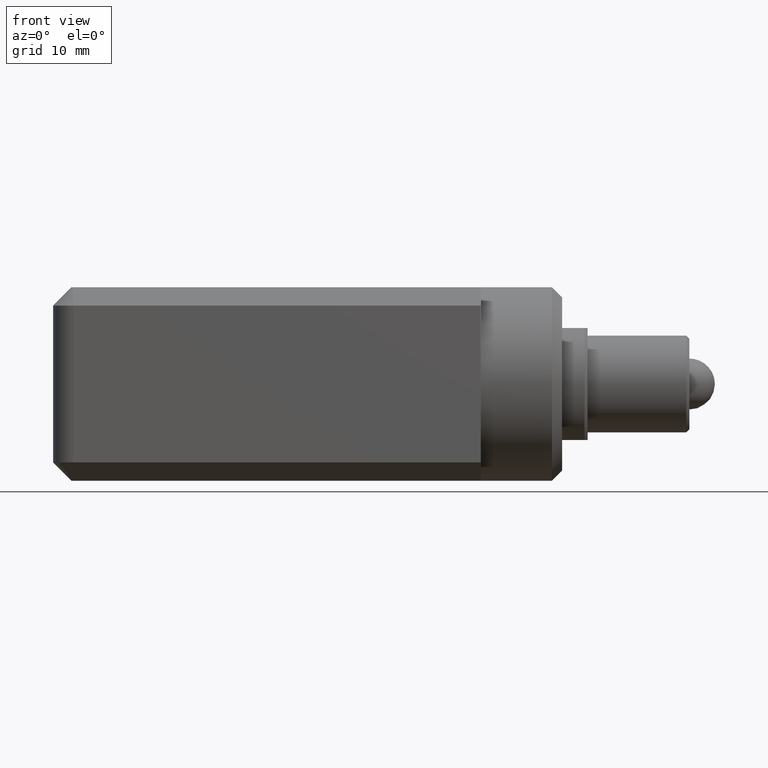
[diagram: clean part render]
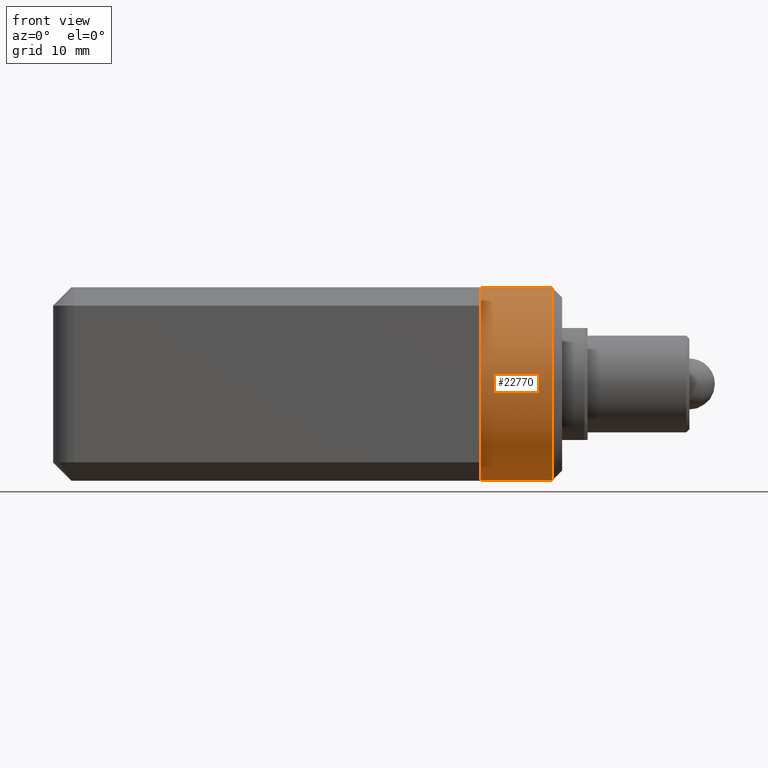
[diagram: same view with one face highlighted and labeled with its STEP entity id]
A machine part, front view. The second image highlights one B-rep face of the part: STEP entity #22770.
In plain terms, the highlighted cylindrical surface (partial cylindrical patch) has radius 9.5 mm, axis along (-1, 0, 0).
Its self-contained STEP definition (entity closure, byte-faithful):
#691 = FACE_OUTER_BOUND ( 'NONE', #18837, .T. ) ;
#824 = DIRECTION ( 'NONE',  ( 0.000000000000000000, 0.000000000000000000, 1.000000000000000000 ) ) ;
#934 = CARTESIAN_POINT ( 'NONE',  ( 6.999999999999999112, 0.000000000000000000, 9.499999999999852562 ) ) ;
#2366 = DIRECTION ( 'NONE',  ( 0.000000000000000000, 0.000000000000000000, 1.000000000000000000 ) ) ;
#2377 = CARTESIAN_POINT ( 'NONE',  ( 0.000000000000000000, 0.000000000000000000, -9.500000000000000000 ) ) ;
#2564 = CARTESIAN_POINT ( 'NONE',  ( 0.000000000000000000, 0.000000000000000000, 9.500000000000000000 ) ) ;
#2707 = AXIS2_PLACEMENT_3D ( 'NONE', #13833, #7787, #9946 ) ;
#2758 = DIRECTION ( 'NONE',  ( -1.000000000000000000, 0.000000000000000000, 0.000000000000000000 ) ) ;
#2783 = ORIENTED_EDGE ( 'NONE', *, *, #6692, .T. ) ;
#3545 = CIRCLE ( 'NONE', #2707, 9.500000000000000000 ) ;
#3793 = ORIENTED_EDGE ( 'NONE', *, *, #17913, .T. ) ;
#3883 = VERTEX_POINT ( 'NONE', #22733 ) ;
#4231 = CARTESIAN_POINT ( 'NONE',  ( 21.52499999999999858, 1.163414459189985485E-15, -9.500000000000000000 ) ) ;
#5244 = DIRECTION ( 'NONE',  ( 0.000000000000000000, 0.000000000000000000, 1.000000000000000000 ) ) ;
#5990 = VERTEX_POINT ( 'NONE', #2377 ) ;
#6692 = EDGE_CURVE ( 'NONE', #8803, #5990, #10797, .T. ) ;
#6879 = DIRECTION ( 'NONE',  ( -1.000000000000000000, 0.000000000000000000, 0.000000000000000000 ) ) ;
#7787 = DIRECTION ( 'NONE',  ( 1.000000000000000000, -0.000000000000000000, -0.000000000000000000 ) ) ;
#8803 = VERTEX_POINT ( 'NONE', #19459 ) ;
#9307 = VECTOR ( 'NONE', #2758, 1000.000000000000000 ) ;
#9329 = ORIENTED_EDGE ( 'NONE', *, *, #14718, .F. ) ;
#9833 = DIRECTION ( 'NONE',  ( 1.000000000000000000, -0.000000000000000000, -0.000000000000000000 ) ) ;
#9946 = DIRECTION ( 'NONE',  ( 0.000000000000000000, 0.000000000000000000, 1.000000000000000000 ) ) ;
#10797 = CIRCLE ( 'NONE', #14016, 9.500000000000000000 ) ;
#12350 = CARTESIAN_POINT ( 'NONE',  ( 21.52499999999999858, 0.000000000000000000, 9.500000000000000000 ) ) ;
#12724 = AXIS2_PLACEMENT_3D ( 'NONE', #23629, #12757, #824 ) ;
#12757 = DIRECTION ( 'NONE',  ( -1.000000000000000000, 0.000000000000000000, 0.000000000000000000 ) ) ;
#13833 = CARTESIAN_POINT ( 'NONE',  ( 0.000000000000000000, 0.000000000000000000, 0.000000000000000000 ) ) ;
#13860 = VERTEX_POINT ( 'NONE', #934 ) ;
#14016 = AXIS2_PLACEMENT_3D ( 'NONE', #23306, #9833, #2366 ) ;
#14718 = EDGE_CURVE ( 'NONE', #3883, #5990, #18349, .T. ) ;
#15128 = EDGE_CURVE ( 'NONE', #15595, #8803, #3545, .T. ) ;
#15424 = ORIENTED_EDGE ( 'NONE', *, *, #17664, .T. ) ;
#15595 = VERTEX_POINT ( 'NONE', #2564 ) ;
#16131 = LINE ( 'NONE', #12350, #9307 ) ;
#17664 = EDGE_CURVE ( 'NONE', #13860, #15595, #16131, .T. ) ;
#17913 = EDGE_CURVE ( 'NONE', #3883, #13860, #21793, .T. ) ;
#18349 = LINE ( 'NONE', #4231, #19173 ) ;
#18837 = EDGE_LOOP ( 'NONE', ( #9329, #3793, #15424, #23281, #2783 ) ) ;
#19173 = VECTOR ( 'NONE', #19571, 1000.000000000000000 ) ;
#19459 = CARTESIAN_POINT ( 'NONE',  ( 0.000000000000000000, -9.500000000000000000, 0.000000000000000000 ) ) ;
#19571 = DIRECTION ( 'NONE',  ( -1.000000000000000000, 0.000000000000000000, 0.000000000000000000 ) ) ;
#19574 = CYLINDRICAL_SURFACE ( 'NONE', #12724, 9.500000000000000000 ) ;
#21793 = CIRCLE ( 'NONE', #23836, 9.500000000000000000 ) ;
#22365 = CARTESIAN_POINT ( 'NONE',  ( 6.999999999999999112, 0.000000000000000000, 0.000000000000000000 ) ) ;
#22733 = CARTESIAN_POINT ( 'NONE',  ( 6.999999999999999112, 1.163414459189967341E-15, -9.499999999999852562 ) ) ;
#22770 = ADVANCED_FACE ( 'NONE', ( #691 ), #19574, .T. ) ;
#23281 = ORIENTED_EDGE ( 'NONE', *, *, #15128, .T. ) ;
#23306 = CARTESIAN_POINT ( 'NONE',  ( 0.000000000000000000, 0.000000000000000000, 0.000000000000000000 ) ) ;
#23629 = CARTESIAN_POINT ( 'NONE',  ( 21.52499999999999858, 0.000000000000000000, 0.000000000000000000 ) ) ;
#23836 = AXIS2_PLACEMENT_3D ( 'NONE', #22365, #6879, #5244 ) ;